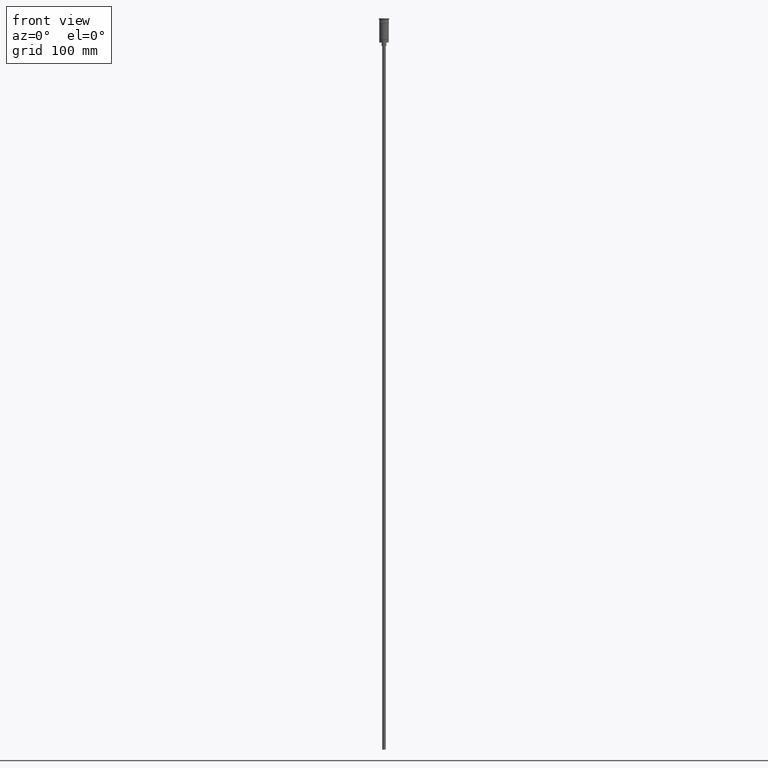
[diagram: clean part render]
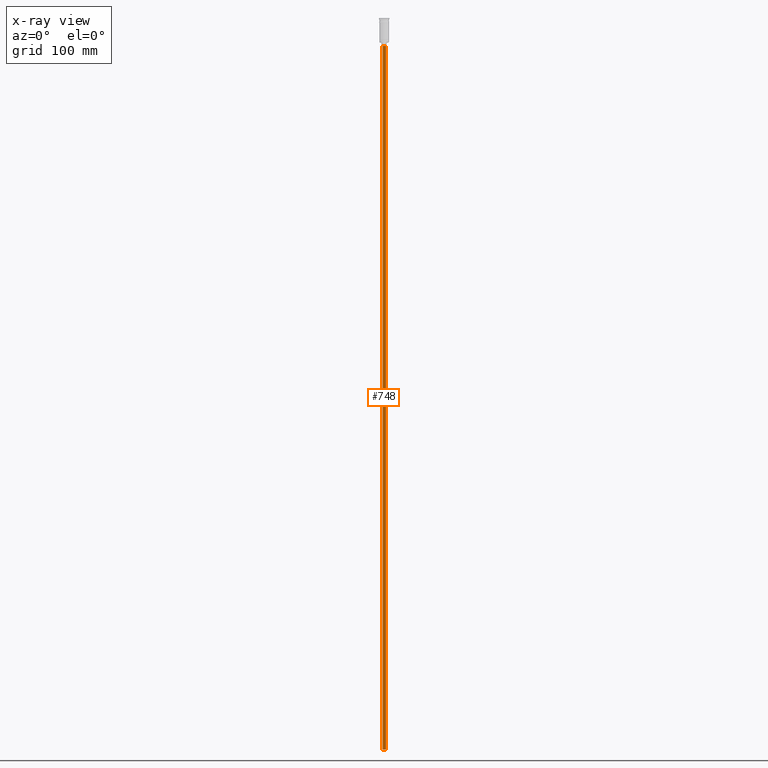
[diagram: x-ray — body ghosted, one internal face saturated and labeled with its STEP entity id]
A machine part, front view, then the same camera in x-ray: the body is ghosted and one INTERNAL B-rep face — a face not visible from any outside direction — is saturated and labeled: STEP entity #748.
In plain terms, the highlighted cylindrical surface (edge-blend (fillet) strip) has radius 1.5 mm, axis along (-0, -0, 1).
Its self-contained STEP definition (entity closure, byte-faithful):
#1 = LINE ( 'NONE', #261, #9 ) ;
#9 = VECTOR ( 'NONE', #741, 1000.000000000000000 ) ;
#54 = ORIENTED_EDGE ( 'NONE', *, *, #114, .T. ) ;
#71 = VERTEX_POINT ( 'NONE', #608 ) ;
#97 = LINE ( 'NONE', #224, #1550 ) ;
#105 = DIRECTION ( 'NONE',  ( -0.000000000000000000, -0.000000000000000000, 1.000000000000000000 ) ) ;
#114 = EDGE_CURVE ( 'NONE', #1002, #1137, #1348, .T. ) ;
#133 = DIRECTION ( 'NONE',  ( -1.000000000000000000, 0.000000000000000000, 0.000000000000000000 ) ) ;
#200 = ORIENTED_EDGE ( 'NONE', *, *, #1100, .T. ) ;
#212 = AXIS2_PLACEMENT_3D ( 'NONE', #830, #1206, #231 ) ;
#224 = CARTESIAN_POINT ( 'NONE',  ( 1.500000000000000222, 0.000000000000000000, -620.4999999999998863 ) ) ;
#231 = DIRECTION ( 'NONE',  ( -1.000000000000000000, 0.000000000000000000, 0.000000000000000000 ) ) ;
#261 = CARTESIAN_POINT ( 'NONE',  ( -1.500000000000000222, 1.836970198721030181E-16, -620.4999999999998863 ) ) ;
#313 = ORIENTED_EDGE ( 'NONE', *, *, #362, .F. ) ;
#362 = EDGE_CURVE ( 'NONE', #71, #1137, #97, .T. ) ;
#505 = DIRECTION ( 'NONE',  ( -0.000000000000000000, -0.000000000000000000, 1.000000000000000000 ) ) ;
#543 = CARTESIAN_POINT ( 'NONE',  ( 1.500000000000000222, 0.000000000000000000, -23.49999999999999645 ) ) ;
#547 = CARTESIAN_POINT ( 'NONE',  ( -1.500000000000000222, 1.836970198721030181E-16, -23.49999999999999645 ) ) ;
#559 = VERTEX_POINT ( 'NONE', #1296 ) ;
#608 = CARTESIAN_POINT ( 'NONE',  ( 1.500000000000000222, 0.000000000000000000, -620.4999999999998863 ) ) ;
#701 = EDGE_CURVE ( 'NONE', #559, #71, #894, .T. ) ;
#729 = DIRECTION ( 'NONE',  ( 1.000000000000000000, 0.000000000000000000, 0.000000000000000000 ) ) ;
#741 = DIRECTION ( 'NONE',  ( -0.000000000000000000, -0.000000000000000000, 1.000000000000000000 ) ) ;
#743 = CARTESIAN_POINT ( 'NONE',  ( 0.000000000000000000, 0.000000000000000000, -23.49999999999999645 ) ) ;
#748 = ADVANCED_FACE ( 'NONE', ( #1473 ), #840, .T. ) ;
#790 = AXIS2_PLACEMENT_3D ( 'NONE', #1351, #505, #729 ) ;
#830 = CARTESIAN_POINT ( 'NONE',  ( 0.000000000000000000, 0.000000000000000000, -620.4999999999998863 ) ) ;
#840 = CYLINDRICAL_SURFACE ( 'NONE', #790, 1.500000000000000222 ) ;
#894 = CIRCLE ( 'NONE', #212, 1.500000000000000222 ) ;
#1002 = VERTEX_POINT ( 'NONE', #547 ) ;
#1008 = EDGE_LOOP ( 'NONE', ( #1459, #200, #54, #313 ) ) ;
#1100 = EDGE_CURVE ( 'NONE', #559, #1002, #1, .T. ) ;
#1137 = VERTEX_POINT ( 'NONE', #543 ) ;
#1206 = DIRECTION ( 'NONE',  ( 0.000000000000000000, 0.000000000000000000, -1.000000000000000000 ) ) ;
#1296 = CARTESIAN_POINT ( 'NONE',  ( -1.500000000000000222, 1.836970198721030181E-16, -620.4999999999998863 ) ) ;
#1348 = CIRCLE ( 'NONE', #1523, 1.500000000000000222 ) ;
#1351 = CARTESIAN_POINT ( 'NONE',  ( 0.000000000000000000, 0.000000000000000000, -620.4999999999998863 ) ) ;
#1395 = DIRECTION ( 'NONE',  ( 0.000000000000000000, 0.000000000000000000, -1.000000000000000000 ) ) ;
#1459 = ORIENTED_EDGE ( 'NONE', *, *, #701, .F. ) ;
#1473 = FACE_OUTER_BOUND ( 'NONE', #1008, .T. ) ;
#1523 = AXIS2_PLACEMENT_3D ( 'NONE', #743, #1395, #133 ) ;
#1550 = VECTOR ( 'NONE', #105, 1000.000000000000000 ) ;